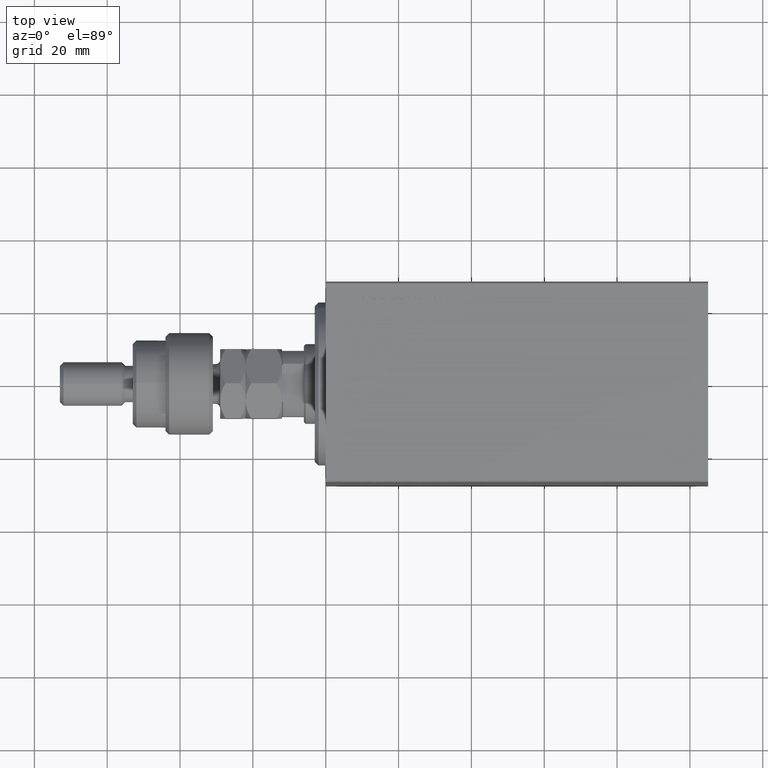
[diagram: clean part render]
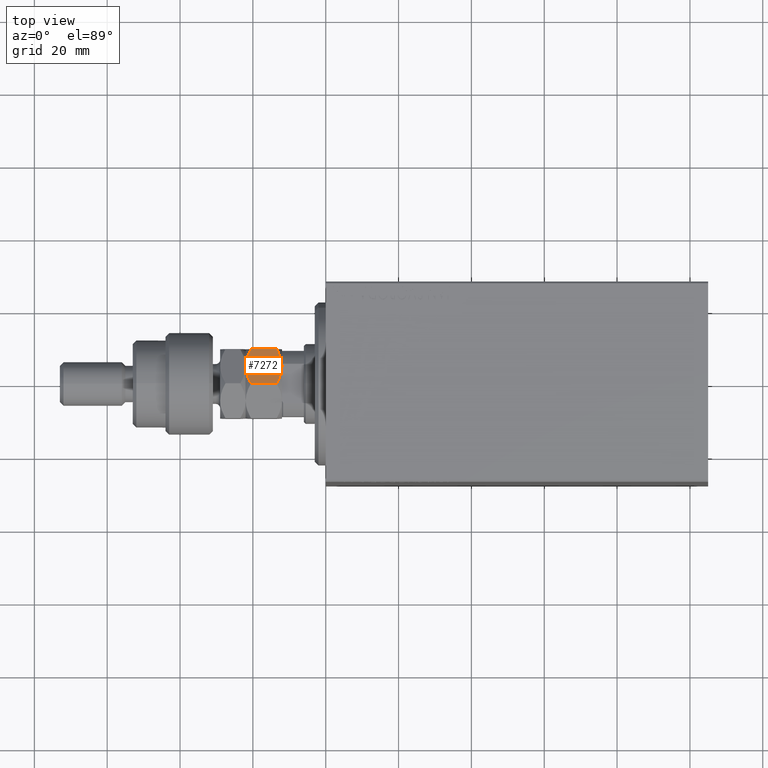
[diagram: same view with one face highlighted and labeled with its STEP entity id]
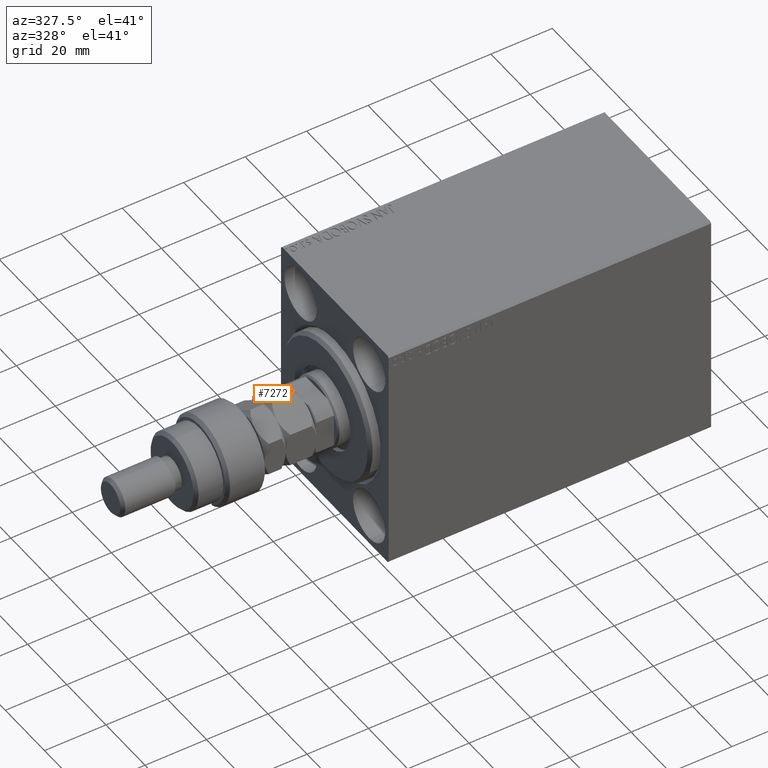
[diagram: same view with one face highlighted and labeled with its STEP entity id]
A machine part, top view. The second image highlights one B-rep face of the part: STEP entity #7272.
A second angle (auxiliary view) of the same face is appended — the face is thin or edge-on in the first view.
In plain terms, the highlighted planar face has unit normal (-0, -0.5, -0.866).
Its self-contained STEP definition (entity closure, byte-faithful):
#242 = CARTESIAN_POINT ( 'NONE',  ( 9.500000000000000000, 5.484827557301445999, 1.469655114602884671 ) ) ;
#752 = CARTESIAN_POINT ( 'NONE',  ( 4.750000000000000888, 8.227241335952163226, 10.00000000000000000 ) ) ;
#1918 = VECTOR ( 'NONE', #37229, 1000.000000000000000 ) ;
#2564 = VERTEX_POINT ( 'NONE', #22606 ) ;
#2915 = CARTESIAN_POINT ( 'NONE',  ( 4.333978297711723826, 8.467431577757027483, -4.811147140404423954E-16 ) ) ;
#4314 = EDGE_CURVE ( 'NONE', #24518, #19158, #43194, .T. ) ;
#5306 = B_SPLINE_CURVE_WITH_KNOTS ( 'NONE', 3,
 ( #30895, #17884, #6763, #21189, #46266, #11243, #28516, #32295 ),
 .UNSPECIFIED., .F., .F.,
 ( 4, 2, 2, 4 ),
 ( 2.544312669948822529E-07, 0.002843014744722341565, 0.004264394901450016540, 0.005685775058177690647 ),
 .UNSPECIFIED. ) ;
#6473 = CARTESIAN_POINT ( 'NONE',  ( 0.7448681452486597410, 10.53960529043279415, 1.039605290432792151 ) ) ;
#6718 = CARTESIAN_POINT ( 'NONE',  ( 2.690254945947325282, 9.416435697371476010, 0.2834621384311878933 ) ) ;
#6763 = CARTESIAN_POINT ( 'NONE',  ( 7.993405681187616629, 6.354660192827334519, 9.325825117528722785 ) ) ;
#6942 = CARTESIAN_POINT ( 'NONE',  ( 7.043584025308272669E-16, 10.96965511460288667, 1.469655114602882007 ) ) ;
#7178 = CARTESIAN_POINT ( 'NONE',  ( 1.506594318812382260, 10.09982247907699637, 0.6741748824712761046 ) ) ;
#7272 = ADVANCED_FACE ( 'NONE', ( #33344 ), #22943, .F. ) ;
#7706 = ORIENTED_EDGE ( 'NONE', *, *, #34212, .F. ) ;
#8103 = CARTESIAN_POINT ( 'NONE',  ( 1.509821400858456730, 10.09795932238899852, 9.328363030548736390 ) ) ;
#8433 = ORIENTED_EDGE ( 'NONE', *, *, #25571, .F. ) ;
#8589 = VERTEX_POINT ( 'NONE', #28075 ) ;
#10818 = VECTOR ( 'NONE', #17414, 1000.000000000000000 ) ;
#11243 = CARTESIAN_POINT ( 'NONE',  ( 5.588267949974992987, 7.743267109381068991, 9.962294231267000200 ) ) ;
#11310 = VERTEX_POINT ( 'NONE', #242 ) ;
#11641 = CARTESIAN_POINT ( 'NONE',  ( 3.923784602134051447, 8.704257018318687145, 10.00000000000000178 ) ) ;
#11844 = DIRECTION ( 'NONE',  ( -0.4999999999999998335, -0.8660254037844388186, 0.000000000000000000 ) ) ;
#13974 = AXIS2_PLACEMENT_3D ( 'NONE', #15398, #11844, #22713 ) ;
#14774 = CARTESIAN_POINT ( 'NONE',  ( 5.576215397865947665, 7.750225653585646413, -3.354250471127028357E-16 ) ) ;
#15398 = CARTESIAN_POINT ( 'NONE',  ( 9.500000000000000000, 5.484827557301445111, 10.00000000000000000 ) ) ;
#16612 = CARTESIAN_POINT ( 'NONE',  ( -3.412354640325339130E-17, 10.96965511460288667, 8.530344885397118659 ) ) ;
#17414 = DIRECTION ( 'NONE',  ( -0.000000000000000000, -0.000000000000000000, -1.000000000000000000 ) ) ;
#17881 = LINE ( 'NONE', #32293, #10818 ) ;
#17884 = CARTESIAN_POINT ( 'NONE',  ( 8.755131854751343923, 5.914877381471537632, 8.960394709567205851 ) ) ;
#18548 = CARTESIAN_POINT ( 'NONE',  ( 9.500000000000000000, 5.484827557301445999, 1.469655114602884671 ) ) ;
#19158 = VERTEX_POINT ( 'NONE', #28573 ) ;
#20560 = EDGE_CURVE ( 'NONE', #8589, #11310, #17881, .T. ) ;
#21189 = CARTESIAN_POINT ( 'NONE',  ( 6.809745054052672941, 7.038046974532853994, 9.716537861568809831 ) ) ;
#22530 = CARTESIAN_POINT ( 'NONE',  ( 0.7440058743609633263, 10.54010312276191996, 8.959896877238174184 ) ) ;
#22606 = CARTESIAN_POINT ( 'NONE',  ( 4.750000000000000888, 8.227241335952163226, 10.00000000000000000 ) ) ;
#22713 = DIRECTION ( 'NONE',  ( 0.8660254037844387076, -0.4999999999999997780, 0.000000000000000000 ) ) ;
#22791 = CARTESIAN_POINT ( 'NONE',  ( 0.000000000000000000, 10.96965511460288667, 10.00000000000000000 ) ) ;
#22943 = PLANE ( 'NONE',  #13974 ) ;
#24201 = ORIENTED_EDGE ( 'NONE', *, *, #29367, .F. ) ;
#24518 = VERTEX_POINT ( 'NONE', #43199 ) ;
#25571 = EDGE_CURVE ( 'NONE', #19158, #11310, #43981, .T. ) ;
#25636 = CARTESIAN_POINT ( 'NONE',  ( 4.749999999999998224, 8.227241335952168555, 0.000000000000000000 ) ) ;
#26067 = CARTESIAN_POINT ( 'NONE',  ( 3.111617971331827270, 9.173161641239184760, 9.854124384224535405 ) ) ;
#26427 = ORIENTED_EDGE ( 'NONE', *, *, #4314, .F. ) ;
#28075 = CARTESIAN_POINT ( 'NONE',  ( 9.500000000000000000, 5.484827557301445111, 8.530344885397115107 ) ) ;
#28516 = CARTESIAN_POINT ( 'NONE',  ( 5.166021702288277062, 7.987051094147303409, 10.00000000000000000 ) ) ;
#28573 = CARTESIAN_POINT ( 'NONE',  ( 4.749999999999998224, 8.227241335952168555, 0.000000000000000000 ) ) ;
#29367 = EDGE_CURVE ( 'NONE', #46608, #24518, #41480, .T. ) ;
#30113 = CARTESIAN_POINT ( 'NONE',  ( 8.755994125639036341, 5.914379549142410042, 1.040103122761829368 ) ) ;
#30895 = CARTESIAN_POINT ( 'NONE',  ( 9.500000000000000000, 5.484827557301445111, 8.530344885397115107 ) ) ;
#31244 = ORIENTED_EDGE ( 'NONE', *, *, #20560, .T. ) ;
#31844 = EDGE_LOOP ( 'NONE', ( #26427, #24201, #7706, #39219, #31244, #8433 ) ) ;
#32293 = CARTESIAN_POINT ( 'NONE',  ( 9.500000000000000000, 5.484827557301445111, 10.00000000000000000 ) ) ;
#32295 = CARTESIAN_POINT ( 'NONE',  ( 4.750000000000000888, 8.227241335952163226, 10.00000000000000000 ) ) ;
#33344 = FACE_OUTER_BOUND ( 'NONE', #31844, .T. ) ;
#34212 = EDGE_CURVE ( 'NONE', #2564, #46608, #38746, .T. ) ;
#35334 = CARTESIAN_POINT ( 'NONE',  ( 3.911732050025009677, 8.711215562523262790, 0.03770576873299955750 ) ) ;
#35564 = CARTESIAN_POINT ( 'NONE',  ( 4.749999999999998224, 8.227241335952168555, 0.000000000000000000 ) ) ;
#35795 = CARTESIAN_POINT ( 'NONE',  ( 3.091726368128225655, 9.184646063703393537, 0.1797418547120336607 ) ) ;
#36582 = EDGE_CURVE ( 'NONE', #8589, #2564, #5306, .T. ) ;
#36757 = CARTESIAN_POINT ( 'NONE',  ( 6.388382028668172730, 7.281321030665154126, 0.1458756157754674820 ) ) ;
#37229 = DIRECTION ( 'NONE',  ( -0.000000000000000000, -0.000000000000000000, -1.000000000000000000 ) ) ;
#38746 = B_SPLINE_CURVE_WITH_KNOTS ( 'NONE', 3,
 ( #752, #11641, #26067, #8103, #22530, #16612 ),
 .UNSPECIFIED., .F., .F.,
 ( 4, 2, 4 ),
 ( 0.005685775058177690647, 0.008508623398180323663, 0.01133147173818295668 ),
 .UNSPECIFIED. ) ;
#39219 = ORIENTED_EDGE ( 'NONE', *, *, #36582, .F. ) ;
#41480 = LINE ( 'NONE', #22791, #1918 ) ;
#43194 = B_SPLINE_CURVE_WITH_KNOTS ( 'NONE', 3,
 ( #6942, #6473, #7178, #6718, #35795, #35334, #2915, #35564 ),
 .UNSPECIFIED., .F., .F.,
 ( 4, 2, 2, 4 ),
 ( 2.544312669947371985E-07, 0.002843014744722341131, 0.004264394901450013937, 0.005685775058177688912 ),
 .UNSPECIFIED. ) ;
#43199 = CARTESIAN_POINT ( 'NONE',  ( 7.043584025308272669E-16, 10.96965511460288667, 1.469655114602882007 ) ) ;
#43981 = B_SPLINE_CURVE_WITH_KNOTS ( 'NONE', 3,
 ( #25636, #14774, #36757, #44313, #30113, #18548 ),
 .UNSPECIFIED., .F., .F.,
 ( 4, 2, 4 ),
 ( 0.005685775058177688912, 0.008508623398180321928, 0.01133147173818295668 ),
 .UNSPECIFIED. ) ;
#44162 = CARTESIAN_POINT ( 'NONE',  ( -3.412354640325339130E-17, 10.96965511460288667, 8.530344885397118659 ) ) ;
#44313 = CARTESIAN_POINT ( 'NONE',  ( 7.990178599141542826, 6.356523349515333265, 0.6716369694512659416 ) ) ;
#46266 = CARTESIAN_POINT ( 'NONE',  ( 6.408273631871775677, 7.269836608200939132, 9.820258145287965590 ) ) ;
#46608 = VERTEX_POINT ( 'NONE', #44162 ) ;